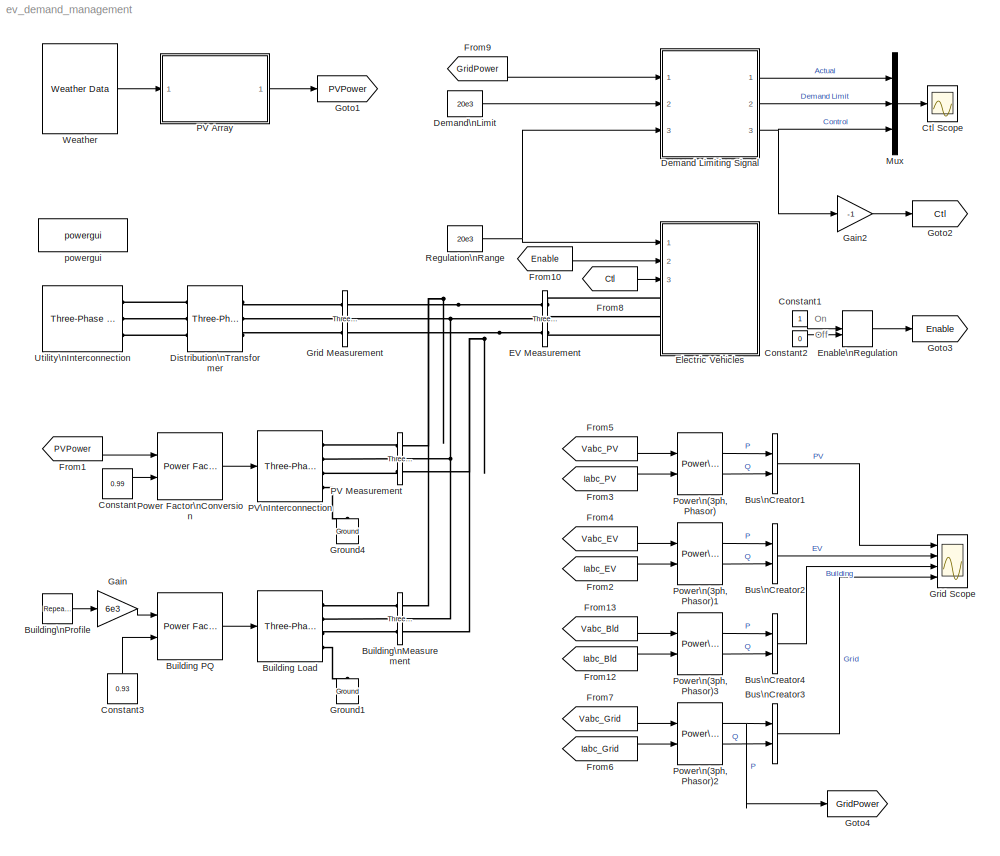
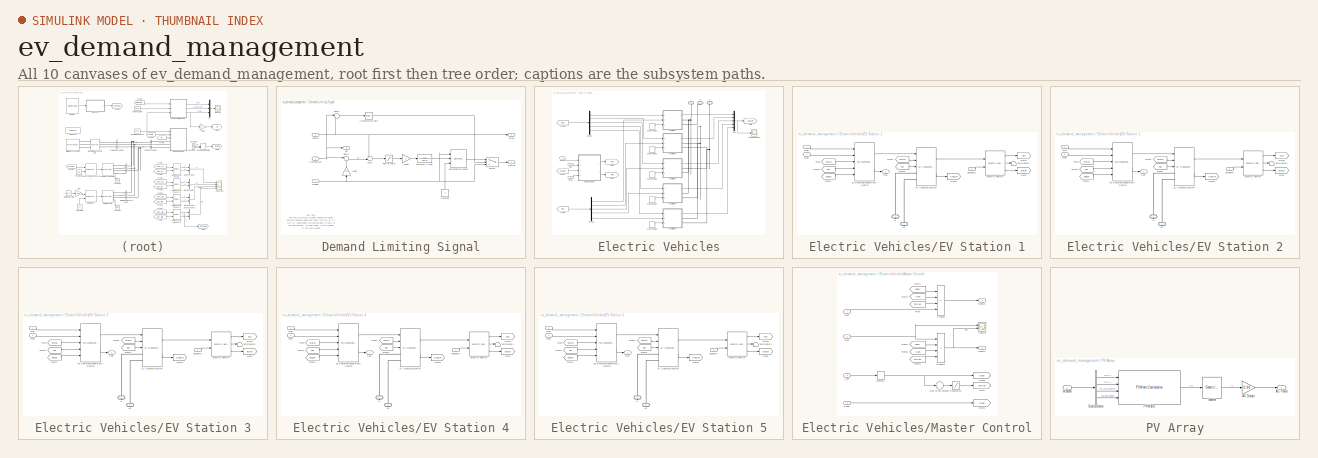
[diagram: thumbnail index - all 10 canvases of the model, root first then tree order]
MODEL ev_demand_management
KIND model
BLOCK [Reference] Building Load  REF=CampusEnergyModeling/Electrical/Three-Phase\nConstant Power\nSource or Load
  Conven = load
  PNom = 5e3
  Ports = [1, 0, 0, 0, 0, 0, 4]
  QNom = 2e3
  SID = 808
  SourceBlock = CampusEnergyModeling/Electrical/Three-Phase\nConstant Power\nSource or Load
  SourceType = Three-Phase Constant Power Source/Load
  VLow = 0.7
  VNom = 208
  fNom = 60
BLOCK [Reference] Building PQ  REF=CampusEnergyModeling/Electrical/Power Factor\nConversion
  Ports = [2, 1]
  SID = 809
  SourceBlock = CampusEnergyModeling/Electrical/Power Factor\nConversion
  SourceType = Power Factor Conversion
  pfType = Lagging
BLOCK [Reference] Building\nMeasurement  REF=powerlib/Measurements/Three-Phase\nV-I Measurement
  CurrentMeasurement = yes
  Ipu = off
  LabelI = Iabc_Bld
  LabelV = Vabc_Bld
  OutputType = Complex
  PSBequivalent = 0
  Pbase = 100e3
  PhasorSimulation = on
  Ports = [0, 0, 0, 0, 0, 3, 3]
  SID = 813
  SetLabelI = on
  SetLabelV = on
  SourceBlock = powerlib/Measurements/Three-Phase\nV-I Measurement
  SourceType = Three-Phase VI Measurement
  Vbase = 208e3
  VoltageMeasurement = phase-to-ground
  Vpu = off
  VpuLL = off
BLOCK [Reference] Building\nProfile  REF=simulink/Sources/Repeating\nSequence
  Ports = [0, 1]
  SID = 811
  SourceBlock = simulink/Sources/Repeating\nSequence
  SourceType = Repeating table
  rep_seq_t = [0 1 2 3 4 5 6 7 8 9 10 11 12 13 14 15 16 17 18 19 20 21 22 23 24]*3600
  rep_seq_y = [0.53 0.53 0.54 0.54 0.56 0.77 0.95 1.53 1.79 1.80 1.83 1.83 1.88 1.91 1.91 1.92 1.63 1.28 1.20 1.13 1.08 0.71 0.52 0.52 0.53]
BLOCK [BusCreator] Bus\nCreator1
  DisplayOption = bar
  Inputs = 2
  Ports = [2, 1]
  SID = 470
BLOCK [BusCreator] Bus\nCreator2
  DisplayOption = bar
  Inputs = 2
  Ports = [2, 1]
  SID = 477
BLOCK [BusCreator] Bus\nCreator3
  DisplayOption = bar
  Inputs = 2
  Ports = [2, 1]
  SID = 481
BLOCK [BusCreator] Bus\nCreator4
  DisplayOption = bar
  Inputs = 2
  Ports = [2, 1]
  SID = 814
BLOCK [Constant] Constant
  SID = 455
  Value = 0.99
BLOCK [Constant] Constant1
  SID = 167
BLOCK [Constant] Constant2
  SID = 170
  Value = 0
BLOCK [Constant] Constant3
  SID = 810
  Value = 0.93
BLOCK [Scope] Ctl Scope
  DataFormat = StructureWithTime
  Floating = off
  LimitDataPoints = off
  NumInputPorts = 1
  Ports = [1]
  SID = 1009
  SampleTime = 0
  ShowLegends = on
  TimeRange = 86400
  YMax = 50000
  YMin = -35000
  ZoomMode = xonly
BLOCK [SubSystem] Demand Limiting Signal
  FunctionWithSeparateData = off
  MaskHideContents = off
  MinAlgLoopOccurrences = off
  Opaque = off
  Ports = [3, 3]
  PropExecContextOutsideSubsystem = off
  RTWSystemCode = Auto
  RequestExecContextInheritance = off
  SID = 17
BLOCK [Outport] Demand Limiting Signal/Actual
  IconDisplay = Port number
  SID = 1021
BLOCK [Reference] Demand Limiting Signal/Compare\nTo Zero  REF=simulink/Logic and Bit\nOperations/Compare\nTo Zero
  OutDataTypeStr = boolean
  Ports = [1, 1]
  SID = 1028
  SourceBlock = simulink/Logic and Bit\nOperations/Compare\nTo Zero
  SourceType = Compare To Zero
  ZeroCross = on
  relop = >=
BLOCK [Constant] Demand Limiting Signal/Constant
  SID = 1031
  Value = 0
BLOCK [Outport] Demand Limiting Signal/Control
  IconDisplay = Port number
  Port = 3
  SID = 1000
BLOCK [Inport] Demand Limiting Signal/Demand Lim
  IconDisplay = Port number
  Port = 2
  SID = 981
BLOCK [Saturate] Demand Limiting Signal/Floor at Zero
  InputPortMap = u0
  LowerLimit = 0
  Ports = [1, 1]
  SID = 987
  UpperLimit = Inf
BLOCK [Gain] Demand Limiting Signal/Gain1
  Gain = 1/2
  OutDataTypeStr = Inherit: Inherit via internal rule
  ParamDataTypeStr = Inherit: Inherit via internal rule
  SID = 996
  SaturateOnIntegerOverflow = off
BLOCK [Gain] Demand Limiting Signal/Gain2
  Gain = 2
  OutDataTypeStr = Inherit: Inherit via internal rule
  ParamDataTypeStr = Inherit: Inherit via internal rule
  SID = 1019
  SaturateOnIntegerOverflow = off
BLOCK [TransferFcn] Demand Limiting Signal/LPF\nTau = 1 min
  Denominator = [60 1]
  SID = 1026
BLOCK [Outport] Demand Limiting Signal/Lim
  IconDisplay = Port number
  Port = 2
  SID = 1025
BLOCK [Inport] Demand Limiting Signal/Power
  IconDisplay = Port number
  SID = 18
BLOCK [Inport] Demand Limiting Signal/Range
  IconDisplay = Port number
  Port = 3
  SID = 985
BLOCK [Reference] Demand Limiting Signal/Saturation\nDynamic  REF=simulink/Discontinuities/Saturation\nDynamic
  DoSatur = off
  LockScale = off
  OutDataType = fixdt(1, 16)
  OutDataTypeStr = Inherit: Same as second input
  OutMax = []
  OutMin = []
  OutScaling = 2^-10
  OutputDataTypeScalingMode = Same as second input
  Ports = [3, 1]
  RndMeth = Floor
  SID = 1030
  SourceBlock = simulink/Discontinuities/Saturation\nDynamic
  SourceType = Saturation Dynamic
BLOCK [Sum] Demand Limiting Signal/Sum1
  IconShape = round
  InputSameDT = off
  Inputs = +-|
  OutDataTypeStr = Inherit: Inherit via internal rule
  Ports = [2, 1]
  SID = 992
  SaturateOnIntegerOverflow = off
BLOCK [Sum] Demand Limiting Signal/Sum2
  IconShape = round
  InputSameDT = off
  Inputs = |+-
  OutDataTypeStr = Inherit: Inherit via internal rule
  Ports = [2, 1]
  SID = 46
  SaturateOnIntegerOverflow = off
BLOCK [Sum] Demand Limiting Signal/Sum3
  IconShape = round
  InputSameDT = off
  Inputs = |+-
  OutDataTypeStr = Inherit: Inherit via internal rule
  Ports = [2, 1]
  SID = 1029
  SaturateOnIntegerOverflow = off
BLOCK [Switch] Demand Limiting Signal/Switch
  Criteria = u2 ~= 0
  InputSameDT = off
  SID = 1027
  SaturateOnIntegerOverflow = off
BLOCK [Constant] Demand\nLimit
  SID = 982
  Value = 20e3
BLOCK [Reference] Distribution\nTransformer  REF=powerlib/Elements/Three-Phase\nTransformer\n(Two Windings)
  BreakLoop = off
  DataFile = 'hysteresis'
  DataType = off
  Hysteresis = off
  InitialFluxes = [ 0.8 , -0.8 , 0.7 ]
  Lm = 200
  Measurements = None
  MoreParameters = off
  NominalPower = [10e3 , 60]
  Ports = [0, 0, 0, 0, 0, 3, 3]
  Rm = 500
  SID = 220
  Saturation = [ 0,0 ; 0.0024,1.2 ; 1.0,1.52 ]
  SetInitialFlux = off
  SetSaturation = off
  SourceBlock = powerlib/Elements/Three-Phase\nTransformer\n(Two Windings)
  SourceType = Three-Phase Transformer (Two Windings)
  TransfoNumber = 1
  UNITS = pu
  Winding1 = [13.2e3 , 0.02/2 , 0.05/(120*pi)/2]
  Winding1Connection = Delta (D1)
  Winding2 = [208, 0.02/2 , 0.05/(120*pi)/2]
  Winding2Connection = Yg
BLOCK [Reference] EV Measurement  REF=powerlib/Measurements/Three-Phase\nV-I Measurement
  CurrentMeasurement = yes
  Ipu = off
  LabelI = Iabc_EV
  LabelV = Vabc_EV
  OutputType = Complex
  PSBequivalent = 0
  Pbase = 100e3
  PhasorSimulation = on
  Ports = [0, 0, 0, 0, 0, 3, 3]
  SID = 476
  SetLabelI = on
  SetLabelV = on
  SourceBlock = powerlib/Measurements/Three-Phase\nV-I Measurement
  SourceType = Three-Phase VI Measurement
  Vbase = 208e3
  VoltageMeasurement = phase-to-ground
  Vpu = off
  VpuLL = off
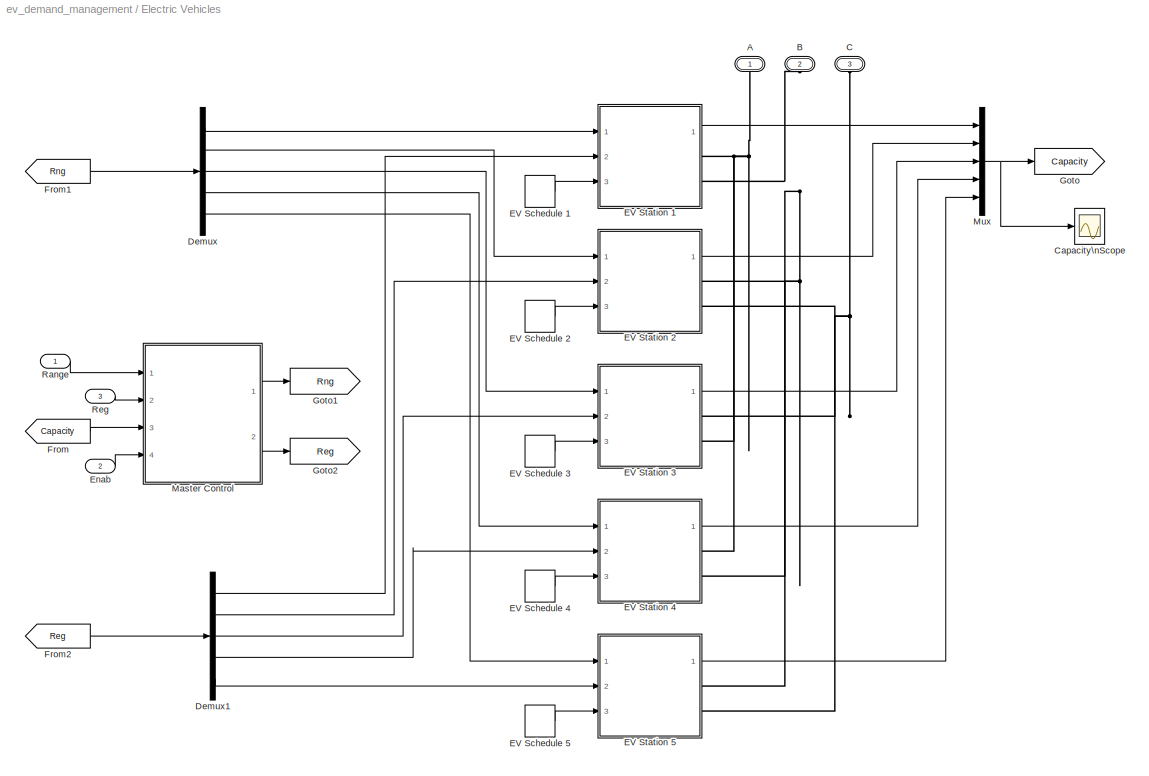
BLOCK [SubSystem] Electric Vehicles
  FunctionWithSeparateData = off
  MaskHideContents = off
  MinAlgLoopOccurrences = off
  Opaque = off
  Ports = [3, 0, 0, 0, 0, 3]
  PropExecContextOutsideSubsystem = off
  RTWSystemCode = Auto
  RequestExecContextInheritance = off
  SID = 65
BLOCK [PMIOPort] Electric Vehicles/A
  Port = 1
  SID = 113
  Side = Left
BLOCK [PMIOPort] Electric Vehicles/B
  Port = 2
  SID = 116
  Side = Left
BLOCK [PMIOPort] Electric Vehicles/C
  Port = 3
  SID = 117
  Side = Left
BLOCK [Scope] Electric Vehicles/Capacity\nScope
  DataFormat = StructureWithTime
  Floating = off
  LimitDataPoints = off
  NumInputPorts = 1
  Ports = [1]
  SID = 844
  SampleTime = 0
  SaveName = ScopeData3
  ShowLegends = on
  TimeRange = 90000
  YMax = 6000
  YMin = 0
  ZoomMode = xonly
BLOCK [Demux] Electric Vehicles/Demux
  DisplayOption = bar
  Outputs = 5
  Ports = [1, 5]
  SID = 784
BLOCK [Demux] Electric Vehicles/Demux1
  DisplayOption = bar
  Outputs = 5
  Ports = [1, 5]
  SID = 789
BLOCK [DiscretePulseGenerator] Electric Vehicles/EV Schedule 1
  Period = 86400
  PhaseDelay = (6)*3600
  Ports = [0, 1]
  PulseType = Time based
  PulseWidth = (9/24)*100
  SID = 91
BLOCK [DiscretePulseGenerator] Electric Vehicles/EV Schedule 2
  Period = 86400
  PhaseDelay = (6.5)*3600
  Ports = [0, 1]
  PulseType = Time based
  PulseWidth = (9/24)*100
  SID = 128
BLOCK [DiscretePulseGenerator] Electric Vehicles/EV Schedule 3
  Period = 86400
  PhaseDelay = (7)*3600
  Ports = [0, 1]
  PulseType = Time based
  PulseWidth = (9/24)*100
  SID = 147
BLOCK [DiscretePulseGenerator] Electric Vehicles/EV Schedule 4
  Period = 86400
  PhaseDelay = (7.5)*3600
  Ports = [0, 1]
  PulseType = Time based
  PulseWidth = (9/24)*100
  SID = 180
BLOCK [DiscretePulseGenerator] Electric Vehicles/EV Schedule 5
  Period = 86400
  PhaseDelay = (8)*3600
  Ports = [0, 1]
  PulseType = Time based
  PulseWidth = (9/24)*100
  SID = 199
BLOCK [SubSystem] Electric Vehicles/EV Station 1
  FunctionWithSeparateData = off
  MaskHideContents = off
  MinAlgLoopOccurrences = off
  Opaque = off
  Ports = [3, 1, 0, 0, 0, 0, 2]
  PropExecContextOutsideSubsystem = off
  RTWSystemCode = Auto
  RequestExecContextInheritance = off
  SID = 95
BLOCK [Reference] Electric Vehicles/EV Station 1/AC Charging Station  REF=CampusEnergyModeling/Electric Vehicles/AC Charging Station
  Ports = [3, 2, 0, 0, 0, 2]
  SID = 85
  SourceBlock = CampusEnergyModeling/Electric Vehicles/AC Charging Station
  SourceType = AC Charging Station
  eff = 0.99
  freq = 60
  pf = 0.99
  prated = 6600
  pstandby = 50
  vrated = 240
BLOCK [Outport] Electric Vehicles/EV Station 1/Cap
  IconDisplay = Port number
  SID = 637
BLOCK [Reference] Electric Vehicles/EV Station 1/EV Charging\nSupervisory Control  REF=CampusEnergyModeling/Electric Vehicles/EV Charging\nSupervisory Control
  Ports = [5, 2]
  SID = 94
  SourceBlock = CampusEnergyModeling/Electric Vehicles/EV Charging\nSupervisory Control
  SourceType = EV Charging Supervisory Control
  ctype = AC
  ldsettings = on
  ramp = 100
  regtype = One-sided
  sweepint = 1650+300*rand(1)
  sweepramp = 10
  thr = 1.0
BLOCK [Reference] Electric Vehicles/EV Station 1/Electric Vehicle  REF=CampusEnergyModeling/Electric Vehicles/Electric Vehicle
  Ports = [2, 3]
  SID = 90
  SourceBlock = CampusEnergyModeling/Electric Vehicles/Electric Vehicle
  SourceType = Electric Vehicle
  battEff = 0.98
  capacity = 24000
  chargerEff = 0.96
  ctype = AC
  initSOC = 0.3
  profile = off
  profileRate = [0.10 0.20 1.00 1.00 0.01 0.00]
  profileSOC = [0.00 0.10 0.20 0.80 0.99 1.00]
  rating = 6240
BLOCK [From] Electric Vehicles/EV Station 1/From
  GotoTag = Status
  SID = 102
BLOCK [From] Electric Vehicles/EV Station 1/From1
  GotoTag = Status
  SID = 104
BLOCK [From] Electric Vehicles/EV Station 1/From2
  GotoTag = Pwr
  SID = 107
BLOCK [From] Electric Vehicles/EV Station 1/From3
  GotoTag = Pwr
  SID = 111
BLOCK [From] Electric Vehicles/EV Station 1/From4
  GotoTag = ChgLim
  SID = 884
BLOCK [Goto] Electric Vehicles/EV Station 1/Goto
  GotoTag = Status
  SID = 103
BLOCK [Goto] Electric Vehicles/EV Station 1/Goto1
  GotoTag = Pwr
  SID = 105
BLOCK [Goto] Electric Vehicles/EV Station 1/Goto2
  GotoTag = ChgLim
  SID = 883
BLOCK [PMIOPort] Electric Vehicles/EV Station 1/L1
  Port = 1
  SID = 88
  Side = Right
BLOCK [PMIOPort] Electric Vehicles/EV Station 1/L2
  Port = 2
  SID = 87
  Side = Right
BLOCK [Inport] Electric Vehicles/EV Station 1/Reg
  IconDisplay = Port number
  Port = 2
  SID = 98
BLOCK [Inport] Electric Vehicles/EV Station 1/Rng
  IconDisplay = Port number
  SID = 96
BLOCK [Inport] Electric Vehicles/EV Station 1/Schedule
  IconDisplay = Port number
  Port = 3
  SID = 101
BLOCK [Terminator] Electric Vehicles/EV Station 1/Terminator1
  SID = 109
BLOCK [SubSystem] Electric Vehicles/EV Station 2
  FunctionWithSeparateData = off
  MaskHideContents = off
  MinAlgLoopOccurrences = off
  Opaque = off
  Ports = [3, 1, 0, 0, 0, 0, 2]
  PropExecContextOutsideSubsystem = off
  RTWSystemCode = Auto
  RequestExecContextInheritance = off
  SID = 904
BLOCK [Reference] Electric Vehicles/EV Station 2/AC Charging Station  REF=CampusEnergyModeling/Electric Vehicles/AC Charging Station
  Ports = [3, 2, 0, 0, 0, 2]
  SID = 908
  SourceBlock = CampusEnergyModeling/Electric Vehicles/AC Charging Station
  SourceType = AC Charging Station
  eff = 0.99
  freq = 60
  pf = 0.99
  prated = 6600
  pstandby = 50
  vrated = 240
BLOCK [Outport] Electric Vehicles/EV Station 2/Cap
  IconDisplay = Port number
  SID = 922
BLOCK [Reference] Electric Vehicles/EV Station 2/EV Charging\nSupervisory Control  REF=CampusEnergyModeling/Electric Vehicles/EV Charging\nSupervisory Control
  Ports = [5, 2]
  SID = 909
  SourceBlock = CampusEnergyModeling/Electric Vehicles/EV Charging\nSupervisory Control
  SourceType = EV Charging Supervisory Control
  ctype = AC
  ldsettings = on
  ramp = 100
  regtype = One-sided
  sweepint = 1650+300*rand(1)
  sweepramp = 10
  thr = 1.0
BLOCK [Reference] Electric Vehicles/EV Station 2/Electric Vehicle  REF=CampusEnergyModeling/Electric Vehicles/Electric Vehicle
  Ports = [2, 3]
  SID = 910
  SourceBlock = CampusEnergyModeling/Electric Vehicles/Electric Vehicle
  SourceType = Electric Vehicle
  battEff = 0.98
  capacity = 24000
  chargerEff = 0.96
  ctype = AC
  initSOC = 0.3
  profile = off
  profileRate = [0.10 0.20 1.00 1.00 0.01 0.00]
  profileSOC = [0.00 0.10 0.20 0.80 0.99 1.00]
  rating = 6240
BLOCK [From] Electric Vehicles/EV Station 2/From
  GotoTag = Status
  SID = 911
BLOCK [From] Electric Vehicles/EV Station 2/From1
  GotoTag = Status
  SID = 912
BLOCK [From] Electric Vehicles/EV Station 2/From2
  GotoTag = Pwr
  SID = 913
BLOCK [From] Electric Vehicles/EV Station 2/From3
  GotoTag = Pwr
  SID = 914
BLOCK [From] Electric Vehicles/EV Station 2/From4
  GotoTag = ChgLim
  SID = 915
BLOCK [Goto] Electric Vehicles/EV Station 2/Goto
  GotoTag = Status
  SID = 916
BLOCK [Goto] Electric Vehicles/EV Station 2/Goto1
  GotoTag = Pwr
  SID = 917
BLOCK [Goto] Electric Vehicles/EV Station 2/Goto2
  GotoTag = ChgLim
  SID = 918
BLOCK [PMIOPort] Electric Vehicles/EV Station 2/L1
  Port = 1
  SID = 920
  Side = Right
BLOCK [PMIOPort] Electric Vehicles/EV Station 2/L2
  Port = 2
  SID = 921
  Side = Right
BLOCK [Inport] Electric Vehicles/EV Station 2/Reg
  IconDisplay = Port number
  Port = 2
  SID = 906
BLOCK [Inport] Electric Vehicles/EV Station 2/Rng
  IconDisplay = Port number
  SID = 905
BLOCK [Inport] Electric Vehicles/EV Station 2/Schedule
  IconDisplay = Port number
  Port = 3
  SID = 907
BLOCK [Terminator] Electric Vehicles/EV Station 2/Terminator1
  SID = 919
BLOCK [SubSystem] Electric Vehicles/EV Station 3
  FunctionWithSeparateData = off
  MaskHideContents = off
  MinAlgLoopOccurrences = off
  Opaque = off
  Ports = [3, 1, 0, 0, 0, 0, 2]
  PropExecContextOutsideSubsystem = off
  RTWSystemCode = Auto
  RequestExecContextInheritance = off
  SID = 923
BLOCK [Reference] Electric Vehicles/EV Station 3/AC Charging Station  REF=CampusEnergyModeling/Electric Vehicles/AC Charging Station
  Ports = [3, 2, 0, 0, 0, 2]
  SID = 927
  SourceBlock = CampusEnergyModeling/Electric Vehicles/AC Charging Station
  SourceType = AC Charging Station
  eff = 0.99
  freq = 60
  pf = 0.99
  prated = 6600
  pstandby = 50
  vrated = 240
BLOCK [Outport] Electric Vehicles/EV Station 3/Cap
  IconDisplay = Port number
  SID = 941
BLOCK [Reference] Electric Vehicles/EV Station 3/EV Charging\nSupervisory Control  REF=CampusEnergyModeling/Electric Vehicles/EV Charging\nSupervisory Control
  Ports = [5, 2]
  SID = 928
  SourceBlock = CampusEnergyModeling/Electric Vehicles/EV Charging\nSupervisory Control
  SourceType = EV Charging Supervisory Control
  ctype = AC
  ldsettings = on
  ramp = 100
  regtype = One-sided
  sweepint = 1650+300*rand(1)
  sweepramp = 10
  thr = 1.0
BLOCK [Reference] Electric Vehicles/EV Station 3/Electric Vehicle  REF=CampusEnergyModeling/Electric Vehicles/Electric Vehicle
  Ports = [2, 3]
  SID = 929
  SourceBlock = CampusEnergyModeling/Electric Vehicles/Electric Vehicle
  SourceType = Electric Vehicle
  battEff = 0.98
  capacity = 24000
  chargerEff = 0.96
  ctype = AC
  initSOC = 0.3
  profile = off
  profileRate = [0.10 0.20 1.00 1.00 0.01 0.00]
  profileSOC = [0.00 0.10 0.20 0.80 0.99 1.00]
  rating = 6240
BLOCK [From] Electric Vehicles/EV Station 3/From
  GotoTag = Status
  SID = 930
BLOCK [From] Electric Vehicles/EV Station 3/From1
  GotoTag = Status
  SID = 931
BLOCK [From] Electric Vehicles/EV Station 3/From2
  GotoTag = Pwr
  SID = 932
BLOCK [From] Electric Vehicles/EV Station 3/From3
  GotoTag = Pwr
  SID = 933
BLOCK [From] Electric Vehicles/EV Station 3/From4
  GotoTag = ChgLim
  SID = 934
BLOCK [Goto] Electric Vehicles/EV Station 3/Goto
  GotoTag = Status
  SID = 935
BLOCK [Goto] Electric Vehicles/EV Station 3/Goto1
  GotoTag = Pwr
  SID = 936
BLOCK [Goto] Electric Vehicles/EV Station 3/Goto2
  GotoTag = ChgLim
  SID = 937
BLOCK [PMIOPort] Electric Vehicles/EV Station 3/L1
  Port = 1
  SID = 939
  Side = Right
BLOCK [PMIOPort] Electric Vehicles/EV Station 3/L2
  Port = 2
  SID = 940
  Side = Right
BLOCK [Inport] Electric Vehicles/EV Station 3/Reg
  IconDisplay = Port number
  Port = 2
  SID = 925
BLOCK [Inport] Electric Vehicles/EV Station 3/Rng
  IconDisplay = Port number
  SID = 924
BLOCK [Inport] Electric Vehicles/EV Station 3/Schedule
  IconDisplay = Port number
  Port = 3
  SID = 926
BLOCK [Terminator] Electric Vehicles/EV Station 3/Terminator1
  SID = 938
BLOCK [SubSystem] Electric Vehicles/EV Station 4
  FunctionWithSeparateData = off
  MaskHideContents = off
  MinAlgLoopOccurrences = off
  Opaque = off
  Ports = [3, 1, 0, 0, 0, 0, 2]
  PropExecContextOutsideSubsystem = off
  RTWSystemCode = Auto
  RequestExecContextInheritance = off
  SID = 942
BLOCK [Reference] Electric Vehicles/EV Station 4/AC Charging Station  REF=CampusEnergyModeling/Electric Vehicles/AC Charging Station
  Ports = [3, 2, 0, 0, 0, 2]
  SID = 946
  SourceBlock = CampusEnergyModeling/Electric Vehicles/AC Charging Station
  SourceType = AC Charging Station
  eff = 0.99
  freq = 60
  pf = 0.99
  prated = 6600
  pstandby = 50
  vrated = 240
BLOCK [Outport] Electric Vehicles/EV Station 4/Cap
  IconDisplay = Port number
  SID = 960
BLOCK [Reference] Electric Vehicles/EV Station 4/EV Charging\nSupervisory Control  REF=CampusEnergyModeling/Electric Vehicles/EV Charging\nSupervisory Control
  Ports = [5, 2]
  SID = 947
  SourceBlock = CampusEnergyModeling/Electric Vehicles/EV Charging\nSupervisory Control
  SourceType = EV Charging Supervisory Control
  ctype = AC
  ldsettings = on
  ramp = 100
  regtype = One-sided
  sweepint = 1650+300*rand(1)
  sweepramp = 10
  thr = 1.0
BLOCK [Reference] Electric Vehicles/EV Station 4/Electric Vehicle  REF=CampusEnergyModeling/Electric Vehicles/Electric Vehicle
  Ports = [2, 3]
  SID = 948
  SourceBlock = CampusEnergyModeling/Electric Vehicles/Electric Vehicle
  SourceType = Electric Vehicle
  battEff = 0.98
  capacity = 24000
  chargerEff = 0.96
  ctype = AC
  initSOC = 0.3
  profile = off
  profileRate = [0.10 0.20 1.00 1.00 0.01 0.00]
  profileSOC = [0.00 0.10 0.20 0.80 0.99 1.00]
  rating = 6240
BLOCK [From] Electric Vehicles/EV Station 4/From
  GotoTag = Status
  SID = 949
BLOCK [From] Electric Vehicles/EV Station 4/From1
  GotoTag = Status
  SID = 950
BLOCK [From] Electric Vehicles/EV Station 4/From2
  GotoTag = Pwr
  SID = 951
BLOCK [From] Electric Vehicles/EV Station 4/From3
  GotoTag = Pwr
  SID = 952
BLOCK [From] Electric Vehicles/EV Station 4/From4
  GotoTag = ChgLim
  SID = 953
BLOCK [Goto] Electric Vehicles/EV Station 4/Goto
  GotoTag = Status
  SID = 954
BLOCK [Goto] Electric Vehicles/EV Station 4/Goto1
  GotoTag = Pwr
  SID = 955
BLOCK [Goto] Electric Vehicles/EV Station 4/Goto2
  GotoTag = ChgLim
  SID = 956
BLOCK [PMIOPort] Electric Vehicles/EV Station 4/L1
  Port = 1
  SID = 958
  Side = Right
BLOCK [PMIOPort] Electric Vehicles/EV Station 4/L2
  Port = 2
  SID = 959
  Side = Right
BLOCK [Inport] Electric Vehicles/EV Station 4/Reg
  IconDisplay = Port number
  Port = 2
  SID = 944
BLOCK [Inport] Electric Vehicles/EV Station 4/Rng
  IconDisplay = Port number
  SID = 943
BLOCK [Inport] Electric Vehicles/EV Station 4/Schedule
  IconDisplay = Port number
  Port = 3
  SID = 945
BLOCK [Terminator] Electric Vehicles/EV Station 4/Terminator1
  SID = 957
BLOCK [SubSystem] Electric Vehicles/EV Station 5
  FunctionWithSeparateData = off
  MaskHideContents = off
  MinAlgLoopOccurrences = off
  Opaque = off
  Ports = [3, 1, 0, 0, 0, 0, 2]
  PropExecContextOutsideSubsystem = off
  RTWSystemCode = Auto
  RequestExecContextInheritance = off
  SID = 961
BLOCK [Reference] Electric Vehicles/EV Station 5/AC Charging Station  REF=CampusEnergyModeling/Electric Vehicles/AC Charging Station
  Ports = [3, 2, 0, 0, 0, 2]
  SID = 965
  SourceBlock = CampusEnergyModeling/Electric Vehicles/AC Charging Station
  SourceType = AC Charging Station
  eff = 0.99
  freq = 60
  pf = 0.99
  prated = 6600
  pstandby = 50
  vrated = 240
BLOCK [Outport] Electric Vehicles/EV Station 5/Cap
  IconDisplay = Port number
  SID = 979
BLOCK [Reference] Electric Vehicles/EV Station 5/EV Charging\nSupervisory Control  REF=CampusEnergyModeling/Electric Vehicles/EV Charging\nSupervisory Control
  Ports = [5, 2]
  SID = 966
  SourceBlock = CampusEnergyModeling/Electric Vehicles/EV Charging\nSupervisory Control
  SourceType = EV Charging Supervisory Control
  ctype = AC
  ldsettings = on
  ramp = 100
  regtype = One-sided
  sweepint = 1650+300*rand(1)
  sweepramp = 10
  thr = 1.0
BLOCK [Reference] Electric Vehicles/EV Station 5/Electric Vehicle  REF=CampusEnergyModeling/Electric Vehicles/Electric Vehicle
  Ports = [2, 3]
  SID = 967
  SourceBlock = CampusEnergyModeling/Electric Vehicles/Electric Vehicle
  SourceType = Electric Vehicle
  battEff = 0.98
  capacity = 24000
  chargerEff = 0.96
  ctype = AC
  initSOC = 0.3
  profile = off
  profileRate = [0.10 0.20 1.00 1.00 0.01 0.00]
  profileSOC = [0.00 0.10 0.20 0.80 0.99 1.00]
  rating = 6240
BLOCK [From] Electric Vehicles/EV Station 5/From
  GotoTag = Status
  SID = 968
BLOCK [From] Electric Vehicles/EV Station 5/From1
  GotoTag = Status
  SID = 969
BLOCK [From] Electric Vehicles/EV Station 5/From2
  GotoTag = Pwr
  SID = 970
BLOCK [From] Electric Vehicles/EV Station 5/From3
  GotoTag = Pwr
  SID = 971
BLOCK [From] Electric Vehicles/EV Station 5/From4
  GotoTag = ChgLim
  SID = 972
BLOCK [Goto] Electric Vehicles/EV Station 5/Goto
  GotoTag = Status
  SID = 973
BLOCK [Goto] Electric Vehicles/EV Station 5/Goto1
  GotoTag = Pwr
  SID = 974
BLOCK [Goto] Electric Vehicles/EV Station 5/Goto2
  GotoTag = ChgLim
  SID = 975
BLOCK [PMIOPort] Electric Vehicles/EV Station 5/L1
  Port = 1
  SID = 977
  Side = Right
BLOCK [PMIOPort] Electric Vehicles/EV Station 5/L2
  Port = 2
  SID = 978
  Side = Right
BLOCK [Inport] Electric Vehicles/EV Station 5/Reg
  IconDisplay = Port number
  Port = 2
  SID = 963
BLOCK [Inport] Electric Vehicles/EV Station 5/Rng
  IconDisplay = Port number
  SID = 962
BLOCK [Inport] Electric Vehicles/EV Station 5/Schedule
  IconDisplay = Port number
  Port = 3
  SID = 964
BLOCK [Terminator] Electric Vehicles/EV Station 5/Terminator1
  SID = 976
BLOCK [Inport] Electric Vehicles/Enab
  IconDisplay = Port number
  Port = 2
  SID = 486
BLOCK [From] Electric Vehicles/From
  GotoTag = Capacity
  SID = 762
BLOCK [From] Electric Vehicles/From1
  GotoTag = Rng
  SID = 787
BLOCK [From] Electric Vehicles/From2
  GotoTag = Reg
  SID = 788
BLOCK [Goto] Electric Vehicles/Goto
  GotoTag = Capacity
  SID = 761
BLOCK [Goto] Electric Vehicles/Goto1
  GotoTag = Rng
  SID = 785
BLOCK [Goto] Electric Vehicles/Goto2
  GotoTag = Reg
  SID = 786
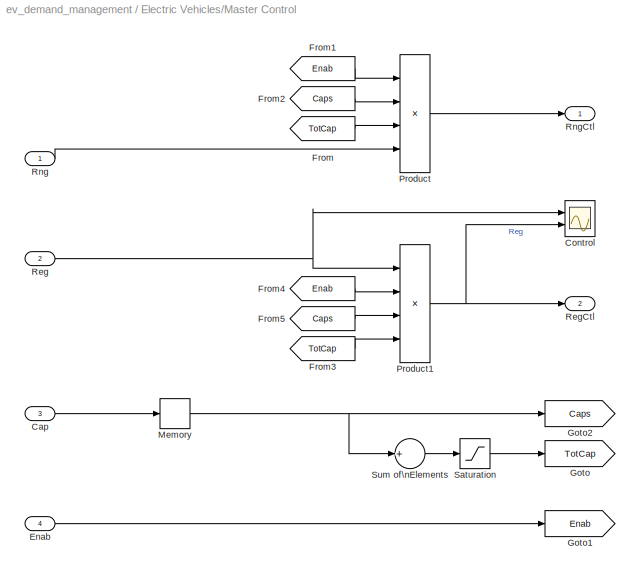
BLOCK [SubSystem] Electric Vehicles/Master Control
  FunctionWithSeparateData = off
  MaskHideContents = off
  MinAlgLoopOccurrences = off
  Opaque = off
  Ports = [4, 2]
  PropExecContextOutsideSubsystem = off
  RTWSystemCode = Auto
  RequestExecContextInheritance = off
  SID = 681
BLOCK [Inport] Electric Vehicles/Master Control/Cap
  IconDisplay = Port number
  Port = 3
  SID = 686
BLOCK [Scope] Electric Vehicles/Master Control/Control
  DataFormat = StructureWithTime
  Floating = off
  LimitDataPoints = off
  NumInputPorts = 2
  Ports = [2]
  SID = 799
  SampleTime = 0
  SaveName = ScopeData2
  ShowLegends = on
  TimeRange = 100000
  YMax = -0~-0
  YMin = -20000~-2500
  ZoomMode = xonly
BLOCK [Inport] Electric Vehicles/Master Control/Enab
  IconDisplay = Port number
  Port = 4
  SID = 685
BLOCK [From] Electric Vehicles/Master Control/From
  GotoTag = TotCap
  SID = 766
BLOCK [From] Electric Vehicles/Master Control/From1
  GotoTag = Enab
  SID = 769
BLOCK [From] Electric Vehicles/Master Control/From2
  GotoTag = Caps
  SID = 772
BLOCK [From] Electric Vehicles/Master Control/From3
  GotoTag = TotCap
  SID = 775
BLOCK [From] Electric Vehicles/Master Control/From4
  GotoTag = Enab
  SID = 776
BLOCK [From] Electric Vehicles/Master Control/From5
  GotoTag = Caps
  SID = 777
BLOCK [Goto] Electric Vehicles/Master Control/Goto
  GotoTag = TotCap
  SID = 767
BLOCK [Goto] Electric Vehicles/Master Control/Goto1
  GotoTag = Enab
  SID = 768
BLOCK [Goto] Electric Vehicles/Master Control/Goto2
  GotoTag = Caps
  SID = 771
BLOCK [Memory] Electric Vehicles/Master Control/Memory
  SID = 794
BLOCK [Product] Electric Vehicles/Master Control/Product
  InputSameDT = off
  Inputs = **/*
  OutDataTypeStr = Inherit: Inherit via internal rule
  Ports = [4, 1]
  RndMeth = Floor
  SID = 770
  SaturateOnIntegerOverflow = off
BLOCK [Product] Electric Vehicles/Master Control/Product1
  InputSameDT = off
  Inputs = ***/
  OutDataTypeStr = Inherit: Inherit via internal rule
  Ports = [4, 1]
  RndMeth = Floor
  SID = 778
  SaturateOnIntegerOverflow = off
BLOCK [Inport] Electric Vehicles/Master Control/Reg
  IconDisplay = Port number
  Port = 2
  SID = 682
BLOCK [Outport] Electric Vehicles/Master Control/RegCtl
  IconDisplay = Port number
  Port = 2
  SID = 763
BLOCK [Inport] Electric Vehicles/Master Control/Rng
  IconDisplay = Port number
  SID = 684
BLOCK [Outport] Electric Vehicles/Master Control/RngCtl
  IconDisplay = Port number
  SID = 683
BLOCK [Saturate] Electric Vehicles/Master Control/Saturation
  InputPortMap = u0
  LowerLimit = 1
  Ports = [1, 1]
  SID = 783
  UpperLimit = inf
BLOCK [Sum] Electric Vehicles/Master Control/Sum of\nElements
  InputSameDT = off
  Inputs = +
  OutDataTypeStr = Inherit: Inherit via internal rule
  Ports = [1, 1]
  SID = 680
  SaturateOnIntegerOverflow = off
BLOCK [Mux] Electric Vehicles/Mux
  DisplayOption = bar
  Inputs = 5
  Ports = [5, 1]
  SID = 688
BLOCK [Inport] Electric Vehicles/Range
  IconDisplay = Port number
  SID = 983
BLOCK [Inport] Electric Vehicles/Reg
  IconDisplay = Port number
  Port = 3
  SID = 66
BLOCK [ManualSwitch] Enable\nRegulation
  SID = 166
BLOCK [From] From1
  GotoTag = PVPower
  SID = 675
BLOCK [From] From10
  GotoTag = Enable
  SID = 677
BLOCK [From] From12
  GotoTag = Iabc_Bld
  SID = 815
  TagVisibility = global
BLOCK [From] From13
  GotoTag = Vabc_Bld
  SID = 816
  TagVisibility = global
BLOCK [From] From2
  GotoTag = Iabc_EV
  SID = 478
  TagVisibility = global
BLOCK [From] From3
  GotoTag = Iabc_PV
  SID = 465
  TagVisibility = global
BLOCK [From] From4
  GotoTag = Vabc_EV
  SID = 479
  TagVisibility = global
BLOCK [From] From5
  GotoTag = Vabc_PV
  SID = 466
  TagVisibility = global
BLOCK [From] From6
  GotoTag = Iabc_Grid
  SID = 482
  TagVisibility = global
BLOCK [From] From7
  GotoTag = Vabc_Grid
  SID = 483
  TagVisibility = global
BLOCK [From] From8
  GotoTag = Ctl
  SID = 177
BLOCK [From] From9
  GotoTag = GridPower
  SID = 830
BLOCK [Gain] Gain
  Gain = 6e3
  OutDataTypeStr = Inherit: Inherit via internal rule
  ParamDataTypeStr = Inherit: Inherit via internal rule
  SID = 818
  SaturateOnIntegerOverflow = off
BLOCK [Gain] Gain2
  Gain = -1
  OutDataTypeStr = Inherit: Inherit via internal rule
  ParamDataTypeStr = Inherit: Inherit via internal rule
  SID = 1023
  SaturateOnIntegerOverflow = off
BLOCK [Goto] Goto1
  GotoTag = PVPower
  SID = 462
BLOCK [Goto] Goto2
  GotoTag = Ctl
  SID = 1006
BLOCK [Goto] Goto3
  GotoTag = Enable
  SID = 676
BLOCK [Goto] Goto4
  GotoTag = GridPower
  SID = 831
BLOCK [Reference] Grid Measurement  REF=powerlib/Measurements/Three-Phase\nV-I Measurement
  CurrentMeasurement = yes
  Ipu = off
  LabelI = Iabc_Grid
  LabelV = Vabc_Grid
  OutputType = Complex
  PSBequivalent = 0
  Pbase = 100e3
  PhasorSimulation = on
  Ports = [0, 0, 0, 0, 0, 3, 3]
  SID = 472
  SetLabelI = on
  SetLabelV = on
  SourceBlock = powerlib/Measurements/Three-Phase\nV-I Measurement
  SourceType = Three-Phase VI Measurement
  Vbase = 208e3
  VoltageMeasurement = phase-to-ground
  Vpu = off
  VpuLL = off
BLOCK [Scope] Grid Scope
  DataFormat = StructureWithTime
  Floating = off
  LimitDataPoints = off
  NumInputPorts = 4
  Ports = [4]
  SID = 226
  SampleTime = 0
  SaveName = ScopeData1
  ShowLegends = on
  TimeRange = 86400
  YMax = 20000~27500~12000~35000
  YMin = -2500~-2500~1000~-7500
  ZoomMode = xonly
BLOCK [Reference] Ground1  REF=powerlib/Elements/Ground
  LConnTagsString = a
  Ports = [0, 0, 0, 0, 0, 1]
  SID = 812
  SourceBlock = powerlib/Elements/Ground
  SourceType = Ground
BLOCK [Reference] Ground4  REF=powerlib/Elements/Ground
  LConnTagsString = a
  Ports = [0, 0, 0, 0, 0, 1]
  SID = 457
  SourceBlock = powerlib/Elements/Ground
  SourceType = Ground
BLOCK [Mux] Mux
  DisplayOption = bar
  Inputs = 3
  Ports = [3, 1]
  SID = 1022
BLOCK [SubSystem] PV Array
  FunctionWithSeparateData = off
  MaskHideContents = off
  MinAlgLoopOccurrences = off
  Opaque = off
  Ports = [1, 1]
  PropExecContextOutsideSubsystem = off
  RTWSystemCode = Auto
  RequestExecContextInheritance = off
  SID = 667
BLOCK [Gain] PV Array/AC Derate
  Gain = 0.99
  OutDataTypeStr = Inherit: Inherit via internal rule
  ParamDataTypeStr = Inherit: Inherit via internal rule
  SID = 668
  SaturateOnIntegerOverflow = off
BLOCK [Outport] PV Array/AC Power
  IconDisplay = Port number
  SID = 673
BLOCK [BusSelector] PV Array/Bus\nSelector
  OutputSignals = DNI,DHI,DryBulbTemp,WindSpeed
  Ports = [1, 4]
  SID = 669
BLOCK [Reference] PV Array/Inverter  REF=CampusEnergyModeling/PV/Generic Inverter
  Ports = [1, 1]
  SID = 670
  SourceBlock = CampusEnergyModeling/PV/Generic Inverter
  SourceType = Generic Inverter
  alpha = 100.0
  beta = 0.04
  fixed_eff = 0.96
  gamma = 4.0e-07
  lookup_eff = [0.10, 0.80, 0.87, 0.93, 0.90, 0.88]
  lookup_in = [0, 10, 25, 50, 75, 100]
  lookup_out = [0, 9, 24, 49, 73, 97]
  lookup_pair = Input Power + Output Power
  max_power = 20.0e3
  model_type = Fixed Efficiency
  standby = 10.0
BLOCK [Reference] PV Array/PVWatts  REF=CampusEnergyModeling/PV/PVWatts Cosimulation
  Ports = [4, 1]
  SID = 671
  SourceBlock = CampusEnergyModeling/PV/PVWatts Cosimulation
  SourceType = PVWatts Cosimulation
  UserData = DataTag0
  UserDataPersistent = on
  alignment = Middle
  azimuth = 180
  derate = 0.908
  gamma = -0.5
  i_ref = 1000
  init_poa = 0
  init_tcell = 16.8
  lat = 39.7
  lon = -105.2
  output_celltemp = off
  output_dc = on
  output_poa = off
  poa_cutin = 0
  rotlim = 45
  start_time = 2012-05-17 00:00:00
  system_size = 20.0e3
  t_noct = 45
  t_ref = 25
  tilt = 10
  time_step = 15
  track_mode = Fixed
  tz = -7
  use_cell_data = off
  use_lat_tilt = off
BLOCK [Inport] PV Array/Weather
  IconDisplay = Port number
  SID = 674
BLOCK [Reference] PV Measurement  REF=powerlib/Measurements/Three-Phase\nV-I Measurement
  CurrentMeasurement = yes
  Ipu = off
  LabelI = Iabc_PV
  LabelV = Vabc_PV
  OutputType = Complex
  PSBequivalent = 0
  Pbase = 100e3
  PhasorSimulation = on
  Ports = [0, 0, 0, 0, 0, 3, 3]
  SID = 559
  SetLabelI = on
  SetLabelV = on
  SourceBlock = powerlib/Measurements/Three-Phase\nV-I Measurement
  SourceType = Three-Phase VI Measurement
  Vbase = 208e3
  VoltageMeasurement = phase-to-ground
  Vpu = off
  VpuLL = off
BLOCK [Reference] PV\nInterconnection  REF=CampusEnergyModeling/Electrical/Three-Phase\nConstant Power\nSource or Load
  Conven = source
  PNom = 20e3
  Ports = [1, 0, 0, 0, 0, 0, 4]
  QNom = 0
  SID = 458
  SourceBlock = CampusEnergyModeling/Electrical/Three-Phase\nConstant Power\nSource or Load
  SourceType = Three-Phase Constant Power Source/Load
  VLow = 0.7
  VNom = 208
  fNom = 60
BLOCK [Reference] Power Factor\nConversion  REF=CampusEnergyModeling/Electrical/Power Factor\nConversion
  Ports = [2, 1]
  SID = 459
  SourceBlock = CampusEnergyModeling/Electrical/Power Factor\nConversion
  SourceType = Power Factor Conversion
  pfType = Lagging
BLOCK [Reference] Power\n(3ph, Phasor)  REF=powerlib_meascontrol/Measurements/Power\n(3ph, Phasor)
  Ports = [2, 2]
  SID = 467
  SourceBlock = powerlib_meascontrol/Measurements/Power\n(3ph, Phasor)
  SourceType = Power (3ph, Phasor)
BLOCK [Reference] Power\n(3ph, Phasor)1  REF=powerlib_meascontrol/Measurements/Power\n(3ph, Phasor)
  Ports = [2, 2]
  SID = 480
  SourceBlock = powerlib_meascontrol/Measurements/Power\n(3ph, Phasor)
  SourceType = Power (3ph, Phasor)
BLOCK [Reference] Power\n(3ph, Phasor)2  REF=powerlib_meascontrol/Measurements/Power\n(3ph, Phasor)
  Ports = [2, 2]
  SID = 484
  SourceBlock = powerlib_meascontrol/Measurements/Power\n(3ph, Phasor)
  SourceType = Power (3ph, Phasor)
BLOCK [Reference] Power\n(3ph, Phasor)3  REF=powerlib_meascontrol/Measurements/Power\n(3ph, Phasor)
  Ports = [2, 2]
  SID = 817
  SourceBlock = powerlib_meascontrol/Measurements/Power\n(3ph, Phasor)
  SourceType = Power (3ph, Phasor)
BLOCK [Constant] Regulation\nRange
  SID = 984
  Value = 20e3
BLOCK [Reference] Utility\nInterconnection  REF=powerlib/Electrical\nSources/Three-Phase Source
  BaseVoltage = 13.2e3
  BusType = swing
  Frequency = 60
  Inductance = 16.58e-3
  InternalConnection = Yg
  PhaseAngle = 0
  Ports = [0, 0, 0, 0, 0, 0, 3]
  Pref = 0
  Qmax = inf
  Qmin = -inf
  Qref = 0
  Resistance = 0.8929
  SID = 227
  ShortCircuitLevel = 1e6
  SourceBlock = powerlib/Electrical\nSources/Three-Phase Source
  SourceType = Three-Phase Source
  SpecifyImpedance = on
  Voltage = 13.2e3
  XRratio = 8
BLOCK [Reference] Weather  REF=CampusEnergyModeling/Weather/Weather Data
  Ports = [0, 1]
  SID = 672
  SourceBlock = CampusEnergyModeling/Weather/Weather Data
  SourceType = Weather Data From File
  fname = Weather.mat
  initbus = on
BLOCK [Reference] powergui  REF=powerlib/powergui
  DisableRonSwitches = off
  DisableSnubberDevices = off
  DisableVfSwitches = off
  DisplayEquations = off
  DisplayStyle = 1
  EnableUseOfTLC = off
  ErrMax = 1e-4
  Frange = [0:2:500]
  FreqAxis = off
  FunctionMessages = off
  HookPort = off
  Interpol = off
  Iterations = 50
  MaxFrequency = 5000
  Pbase = 100e6
  Ports = []
  Priority = 2
  ResistiveCurrentMeasurement = off
  RestoreLinks = warning
  RmsSteady = 1
  SID = 300
  SPID = off
  SampleTime = Ts
  ShowGrid = off
  SolverType = Tustin
  SourceBlock = powerlib/powergui
  SourceType = PSB option menu block
  StartTime = 0.26
  SwTol = 0
  Ts = 0
  UnitsV = kV
  UnitsW = kW
  UserData = DataTag1
  UserDataPersistent = on
  Xlog = on
  Ylog = off
  ZoomFFT = on
  cycles = 2
  display = off
  echomessages = off
  frequency = 60
  frequencyindice = 60
  frequencyindicesteady = 1
  fundamental = 60
  methode = off
  save = off
  structure = Sig1
  variable = ZData
  x0status = blocks
ANNOTATION (root): Off
ANNOTATION (root): On
ANNOTATION Demand Limiting Signal: Soft Limit:\nThis control strategy provides a linearly increasing\ndemand response signal that goes from 0% at 1/2\nthe DR range below the demand limit to 100% at\nthe demand limit. To avoid ringing, a LPF is applied\nto the control signal.\n\nHard Limit:\nTo bac kup the soft limit, if the demand climbs\nabove the demand limit the controller automatically\nsets the deman limit signal to its maximu...<+78ch>
LINE Building PQ:1 -> Building Load:1
LINE Building\nProfile:1 -> Gain:1
LINE Bus\nCreator1:1 -> Grid Scope:1
LINE Bus\nCreator2:1 -> Grid Scope:2
LINE Bus\nCreator3:1 -> Grid Scope:4
LINE Bus\nCreator4:1 -> Grid Scope:3
LINE Constant1:1 -> Enable\nRegulation:1
LINE Constant2:1 -> Enable\nRegulation:2
LINE Constant3:1 -> Building PQ:2
LINE Constant:1 -> Power Factor\nConversion:2
LINE Demand Limiting Signal/Compare\nTo Zero:1 -> Demand Limiting Signal/Switch:2
LINE Demand Limiting Signal/Constant:1 -> Demand Limiting Signal/Saturation\nDynamic:3
NET Demand Limiting Signal/Demand Lim:1 -> Demand Limiting Signal/Lim:1, Demand Limiting Signal/Sum2:1, Demand Limiting Signal/Sum3:1
LINE Demand Limiting Signal/Floor at Zero:1 -> Demand Limiting Signal/Gain2:1
LINE Demand Limiting Signal/Gain1:1 -> Demand Limiting Signal/Sum2:2
LINE Demand Limiting Signal/Gain2:1 -> Demand Limiting Signal/LPF\nTau = 1 min:1
LINE Demand Limiting Signal/LPF\nTau = 1 min:1 -> Demand Limiting Signal/Saturation\nDynamic:2
NET Demand Limiting Signal/Power:1 -> Demand Limiting Signal/Actual:1, Demand Limiting Signal/Sum1:1, Demand Limiting Signal/Sum3:2
NET Demand Limiting Signal/Range:1 -> Demand Limiting Signal/Gain1:1, Demand Limiting Signal/Saturation\nDynamic:1, Demand Limiting Signal/Switch:3
LINE Demand Limiting Signal/Saturation\nDynamic:1 -> Demand Limiting Signal/Switch:1
LINE Demand Limiting Signal/Sum1:1 -> Demand Limiting Signal/Floor at Zero:1
LINE Demand Limiting Signal/Sum2:1 -> Demand Limiting Signal/Sum1:2
LINE Demand Limiting Signal/Sum3:1 -> Demand Limiting Signal/Compare\nTo Zero:1
LINE Demand Limiting Signal/Switch:1 -> Demand Limiting Signal/Control:1
LINE Demand Limiting Signal:1 -> Mux:1
LINE Demand Limiting Signal:2 -> Mux:2
NET Demand Limiting Signal:3 -> Gain2:1, Mux:3
LINE Demand\nLimit:1 -> Demand Limiting Signal:2
LINE Electric Vehicles/Demux1:1 -> Electric Vehicles/EV Station 1:2
LINE Electric Vehicles/Demux1:2 -> Electric Vehicles/EV Station 2:2
LINE Electric Vehicles/Demux1:3 -> Electric Vehicles/EV Station 3:2
LINE Electric Vehicles/Demux1:4 -> Electric Vehicles/EV Station 4:2
LINE Electric Vehicles/Demux1:5 -> Electric Vehicles/EV Station 5:2
LINE Electric Vehicles/Demux:1 -> Electric Vehicles/EV Station 1:1
LINE Electric Vehicles/Demux:2 -> Electric Vehicles/EV Station 2:1
LINE Electric Vehicles/Demux:3 -> Electric Vehicles/EV Station 3:1
LINE Electric Vehicles/Demux:4 -> Electric Vehicles/EV Station 4:1
LINE Electric Vehicles/Demux:5 -> Electric Vehicles/EV Station 5:1
LINE Electric Vehicles/EV Schedule 1:1 -> Electric Vehicles/EV Station 1:3
LINE Electric Vehicles/EV Schedule 2:1 -> Electric Vehicles/EV Station 2:3
LINE Electric Vehicles/EV Schedule 3:1 -> Electric Vehicles/EV Station 3:3
LINE Electric Vehicles/EV Schedule 4:1 -> Electric Vehicles/EV Station 4:3
LINE Electric Vehicles/EV Schedule 5:1 -> Electric Vehicles/EV Station 5:3
LINE Electric Vehicles/EV Station 1/AC Charging Station:1 -> Electric Vehicles/EV Station 1/Electric Vehicle:1
LINE Electric Vehicles/EV Station 1/AC Charging Station:2 -> Electric Vehicles/EV Station 1/Goto2:1
LINE Electric Vehicles/EV Station 1/EV Charging\nSupervisory Control:1 -> Electric Vehicles/EV Station 1/AC Charging Station:1
LINE Electric Vehicles/EV Station 1/EV Charging\nSupervisory Control:2 -> Electric Vehicles/EV Station 1/Cap:1
LINE Electric Vehicles/EV Station 1/Electric Vehicle:1 -> Electric Vehicles/EV Station 1/Goto1:1
LINE Electric Vehicles/EV Station 1/Electric Vehicle:2 -> Electric Vehicles/EV Station 1/Terminator1:1
LINE Electric Vehicles/EV Station 1/Electric Vehicle:3 -> Electric Vehicles/EV Station 1/Goto:1
LINE Electric Vehicles/EV Station 1/From1:1 -> Electric Vehicles/EV Station 1/AC Charging Station:2
LINE Electric Vehicles/EV Station 1/From2:1 -> Electric Vehicles/EV Station 1/AC Charging Station:3
LINE Electric Vehicles/EV Station 1/From3:1 -> Electric Vehicles/EV Station 1/EV Charging\nSupervisory Control:4
LINE Electric Vehicles/EV Station 1/From4:1 -> Electric Vehicles/EV Station 1/EV Charging\nSupervisory Control:5
LINE Electric Vehicles/EV Station 1/From:1 -> Electric Vehicles/EV Station 1/EV Charging\nSupervisory Control:3
LINE Electric Vehicles/EV Station 1/Reg:1 -> Electric Vehicles/EV Station 1/EV Charging\nSupervisory Control:2
LINE Electric Vehicles/EV Station 1/Rng:1 -> Electric Vehicles/EV Station 1/EV Charging\nSupervisory Control:1
LINE Electric Vehicles/EV Station 1/Schedule:1 -> Electric Vehicles/EV Station 1/Electric Vehicle:2
LINE Electric Vehicles/EV Station 1:1 -> Electric Vehicles/Mux:1
LINE Electric Vehicles/EV Station 2/AC Charging Station:1 -> Electric Vehicles/EV Station 2/Electric Vehicle:1
LINE Electric Vehicles/EV Station 2/AC Charging Station:2 -> Electric Vehicles/EV Station 2/Goto2:1
LINE Electric Vehicles/EV Station 2/EV Charging\nSupervisory Control:1 -> Electric Vehicles/EV Station 2/AC Charging Station:1
LINE Electric Vehicles/EV Station 2/EV Charging\nSupervisory Control:2 -> Electric Vehicles/EV Station 2/Cap:1
LINE Electric Vehicles/EV Station 2/Electric Vehicle:1 -> Electric Vehicles/EV Station 2/Goto1:1
LINE Electric Vehicles/EV Station 2/Electric Vehicle:2 -> Electric Vehicles/EV Station 2/Terminator1:1
LINE Electric Vehicles/EV Station 2/Electric Vehicle:3 -> Electric Vehicles/EV Station 2/Goto:1
LINE Electric Vehicles/EV Station 2/From1:1 -> Electric Vehicles/EV Station 2/AC Charging Station:2
LINE Electric Vehicles/EV Station 2/From2:1 -> Electric Vehicles/EV Station 2/AC Charging Station:3
LINE Electric Vehicles/EV Station 2/From3:1 -> Electric Vehicles/EV Station 2/EV Charging\nSupervisory Control:4
LINE Electric Vehicles/EV Station 2/From4:1 -> Electric Vehicles/EV Station 2/EV Charging\nSupervisory Control:5
LINE Electric Vehicles/EV Station 2/From:1 -> Electric Vehicles/EV Station 2/EV Charging\nSupervisory Control:3
LINE Electric Vehicles/EV Station 2/Reg:1 -> Electric Vehicles/EV Station 2/EV Charging\nSupervisory Control:2
LINE Electric Vehicles/EV Station 2/Rng:1 -> Electric Vehicles/EV Station 2/EV Charging\nSupervisory Control:1
LINE Electric Vehicles/EV Station 2/Schedule:1 -> Electric Vehicles/EV Station 2/Electric Vehicle:2
LINE Electric Vehicles/EV Station 2:1 -> Electric Vehicles/Mux:2
LINE Electric Vehicles/EV Station 3/AC Charging Station:1 -> Electric Vehicles/EV Station 3/Electric Vehicle:1
LINE Electric Vehicles/EV Station 3/AC Charging Station:2 -> Electric Vehicles/EV Station 3/Goto2:1
LINE Electric Vehicles/EV Station 3/EV Charging\nSupervisory Control:1 -> Electric Vehicles/EV Station 3/AC Charging Station:1
LINE Electric Vehicles/EV Station 3/EV Charging\nSupervisory Control:2 -> Electric Vehicles/EV Station 3/Cap:1
LINE Electric Vehicles/EV Station 3/Electric Vehicle:1 -> Electric Vehicles/EV Station 3/Goto1:1
LINE Electric Vehicles/EV Station 3/Electric Vehicle:2 -> Electric Vehicles/EV Station 3/Terminator1:1
LINE Electric Vehicles/EV Station 3/Electric Vehicle:3 -> Electric Vehicles/EV Station 3/Goto:1
LINE Electric Vehicles/EV Station 3/From1:1 -> Electric Vehicles/EV Station 3/AC Charging Station:2
LINE Electric Vehicles/EV Station 3/From2:1 -> Electric Vehicles/EV Station 3/AC Charging Station:3
LINE Electric Vehicles/EV Station 3/From3:1 -> Electric Vehicles/EV Station 3/EV Charging\nSupervisory Control:4
LINE Electric Vehicles/EV Station 3/From4:1 -> Electric Vehicles/EV Station 3/EV Charging\nSupervisory Control:5
LINE Electric Vehicles/EV Station 3/From:1 -> Electric Vehicles/EV Station 3/EV Charging\nSupervisory Control:3
LINE Electric Vehicles/EV Station 3/Reg:1 -> Electric Vehicles/EV Station 3/EV Charging\nSupervisory Control:2
LINE Electric Vehicles/EV Station 3/Rng:1 -> Electric Vehicles/EV Station 3/EV Charging\nSupervisory Control:1
LINE Electric Vehicles/EV Station 3/Schedule:1 -> Electric Vehicles/EV Station 3/Electric Vehicle:2
LINE Electric Vehicles/EV Station 3:1 -> Electric Vehicles/Mux:3
LINE Electric Vehicles/EV Station 4/AC Charging Station:1 -> Electric Vehicles/EV Station 4/Electric Vehicle:1
LINE Electric Vehicles/EV Station 4/AC Charging Station:2 -> Electric Vehicles/EV Station 4/Goto2:1
LINE Electric Vehicles/EV Station 4/EV Charging\nSupervisory Control:1 -> Electric Vehicles/EV Station 4/AC Charging Station:1
LINE Electric Vehicles/EV Station 4/EV Charging\nSupervisory Control:2 -> Electric Vehicles/EV Station 4/Cap:1
LINE Electric Vehicles/EV Station 4/Electric Vehicle:1 -> Electric Vehicles/EV Station 4/Goto1:1
LINE Electric Vehicles/EV Station 4/Electric Vehicle:2 -> Electric Vehicles/EV Station 4/Terminator1:1
LINE Electric Vehicles/EV Station 4/Electric Vehicle:3 -> Electric Vehicles/EV Station 4/Goto:1
LINE Electric Vehicles/EV Station 4/From1:1 -> Electric Vehicles/EV Station 4/AC Charging Station:2
LINE Electric Vehicles/EV Station 4/From2:1 -> Electric Vehicles/EV Station 4/AC Charging Station:3
LINE Electric Vehicles/EV Station 4/From3:1 -> Electric Vehicles/EV Station 4/EV Charging\nSupervisory Control:4
LINE Electric Vehicles/EV Station 4/From4:1 -> Electric Vehicles/EV Station 4/EV Charging\nSupervisory Control:5
LINE Electric Vehicles/EV Station 4/From:1 -> Electric Vehicles/EV Station 4/EV Charging\nSupervisory Control:3
LINE Electric Vehicles/EV Station 4/Reg:1 -> Electric Vehicles/EV Station 4/EV Charging\nSupervisory Control:2
LINE Electric Vehicles/EV Station 4/Rng:1 -> Electric Vehicles/EV Station 4/EV Charging\nSupervisory Control:1
LINE Electric Vehicles/EV Station 4/Schedule:1 -> Electric Vehicles/EV Station 4/Electric Vehicle:2
LINE Electric Vehicles/EV Station 4:1 -> Electric Vehicles/Mux:4
LINE Electric Vehicles/EV Station 5/AC Charging Station:1 -> Electric Vehicles/EV Station 5/Electric Vehicle:1
LINE Electric Vehicles/EV Station 5/AC Charging Station:2 -> Electric Vehicles/EV Station 5/Goto2:1
LINE Electric Vehicles/EV Station 5/EV Charging\nSupervisory Control:1 -> Electric Vehicles/EV Station 5/AC Charging Station:1
LINE Electric Vehicles/EV Station 5/EV Charging\nSupervisory Control:2 -> Electric Vehicles/EV Station 5/Cap:1
LINE Electric Vehicles/EV Station 5/Electric Vehicle:1 -> Electric Vehicles/EV Station 5/Goto1:1
LINE Electric Vehicles/EV Station 5/Electric Vehicle:2 -> Electric Vehicles/EV Station 5/Terminator1:1
LINE Electric Vehicles/EV Station 5/Electric Vehicle:3 -> Electric Vehicles/EV Station 5/Goto:1
LINE Electric Vehicles/EV Station 5/From1:1 -> Electric Vehicles/EV Station 5/AC Charging Station:2
LINE Electric Vehicles/EV Station 5/From2:1 -> Electric Vehicles/EV Station 5/AC Charging Station:3
LINE Electric Vehicles/EV Station 5/From3:1 -> Electric Vehicles/EV Station 5/EV Charging\nSupervisory Control:4
LINE Electric Vehicles/EV Station 5/From4:1 -> Electric Vehicles/EV Station 5/EV Charging\nSupervisory Control:5
LINE Electric Vehicles/EV Station 5/From:1 -> Electric Vehicles/EV Station 5/EV Charging\nSupervisory Control:3
LINE Electric Vehicles/EV Station 5/Reg:1 -> Electric Vehicles/EV Station 5/EV Charging\nSupervisory Control:2
LINE Electric Vehicles/EV Station 5/Rng:1 -> Electric Vehicles/EV Station 5/EV Charging\nSupervisory Control:1
LINE Electric Vehicles/EV Station 5/Schedule:1 -> Electric Vehicles/EV Station 5/Electric Vehicle:2
LINE Electric Vehicles/EV Station 5:1 -> Electric Vehicles/Mux:5
LINE Electric Vehicles/Enab:1 -> Electric Vehicles/Master Control:4
LINE Electric Vehicles/From1:1 -> Electric Vehicles/Demux:1
LINE Electric Vehicles/From2:1 -> Electric Vehicles/Demux1:1
LINE Electric Vehicles/From:1 -> Electric Vehicles/Master Control:3
LINE Electric Vehicles/Master Control/Cap:1 -> Electric Vehicles/Master Control/Memory:1
LINE Electric Vehicles/Master Control/Enab:1 -> Electric Vehicles/Master Control/Goto1:1
LINE Electric Vehicles/Master Control/From1:1 -> Electric Vehicles/Master Control/Product:1
LINE Electric Vehicles/Master Control/From2:1 -> Electric Vehicles/Master Control/Product:2
LINE Electric Vehicles/Master Control/From3:1 -> Electric Vehicles/Master Control/Product1:4
LINE Electric Vehicles/Master Control/From4:1 -> Electric Vehicles/Master Control/Product1:2
LINE Electric Vehicles/Master Control/From5:1 -> Electric Vehicles/Master Control/Product1:3
LINE Electric Vehicles/Master Control/From:1 -> Electric Vehicles/Master Control/Product:3
NET Electric Vehicles/Master Control/Memory:1 -> Electric Vehicles/Master Control/Goto2:1, Electric Vehicles/Master Control/Sum of\nElements:1
NET Electric Vehicles/Master Control/Product1:1 -> Electric Vehicles/Master Control/Control:2, Electric Vehicles/Master Control/RegCtl:1
LINE Electric Vehicles/Master Control/Product:1 -> Electric Vehicles/Master Control/RngCtl:1
NET Electric Vehicles/Master Control/Reg:1 -> Electric Vehicles/Master Control/Control:1, Electric Vehicles/Master Control/Product1:1
LINE Electric Vehicles/Master Control/Rng:1 -> Electric Vehicles/Master Control/Product:4
LINE Electric Vehicles/Master Control/Saturation:1 -> Electric Vehicles/Master Control/Goto:1
LINE Electric Vehicles/Master Control/Sum of\nElements:1 -> Electric Vehicles/Master Control/Saturation:1
LINE Electric Vehicles/Master Control:1 -> Electric Vehicles/Goto1:1
LINE Electric Vehicles/Master Control:2 -> Electric Vehicles/Goto2:1
NET Electric Vehicles/Mux:1 -> Electric Vehicles/Capacity\nScope:1, Electric Vehicles/Goto:1
LINE Electric Vehicles/Range:1 -> Electric Vehicles/Master Control:1
LINE Electric Vehicles/Reg:1 -> Electric Vehicles/Master Control:2
LINE Enable\nRegulation:1 -> Goto3:1
LINE From10:1 -> Electric Vehicles:2
LINE From12:1 -> Power\n(3ph, Phasor)3:2
LINE From13:1 -> Power\n(3ph, Phasor)3:1
LINE From1:1 -> Power Factor\nConversion:1
LINE From2:1 -> Power\n(3ph, Phasor)1:2
LINE From3:1 -> Power\n(3ph, Phasor):2
LINE From4:1 -> Power\n(3ph, Phasor)1:1
LINE From5:1 -> Power\n(3ph, Phasor):1
LINE From6:1 -> Power\n(3ph, Phasor)2:2
LINE From7:1 -> Power\n(3ph, Phasor)2:1
LINE From8:1 -> Electric Vehicles:3
LINE From9:1 -> Demand Limiting Signal:1
LINE Gain2:1 -> Goto2:1
LINE Gain:1 -> Building PQ:1
LINE Mux:1 -> Ctl Scope:1
LINE PV Array/AC Derate:1 -> PV Array/AC Power:1
LINE PV Array/Bus\nSelector:1 -> PV Array/PVWatts:1
LINE PV Array/Bus\nSelector:2 -> PV Array/PVWatts:2
LINE PV Array/Bus\nSelector:3 -> PV Array/PVWatts:3
LINE PV Array/Bus\nSelector:4 -> PV Array/PVWatts:4
LINE PV Array/Inverter:1 -> PV Array/AC Derate:1
LINE PV Array/PVWatts:1 -> PV Array/Inverter:1
LINE PV Array/Weather:1 -> PV Array/Bus\nSelector:1
LINE PV Array:1 -> Goto1:1
LINE Power Factor\nConversion:1 -> PV\nInterconnection:1
LINE Power\n(3ph, Phasor)1:1 -> Bus\nCreator2:1
LINE Power\n(3ph, Phasor)1:2 -> Bus\nCreator2:2
NET Power\n(3ph, Phasor)2:1 -> Bus\nCreator3:1, Goto4:1
LINE Power\n(3ph, Phasor)2:2 -> Bus\nCreator3:2
LINE Power\n(3ph, Phasor)3:1 -> Bus\nCreator4:1
LINE Power\n(3ph, Phasor)3:2 -> Bus\nCreator4:2
LINE Power\n(3ph, Phasor):1 -> Bus\nCreator1:1
LINE Power\n(3ph, Phasor):2 -> Bus\nCreator1:2
NET Regulation\nRange:1 -> Demand Limiting Signal:3, Electric Vehicles:1
LINE Weather:1 -> PV Array:1
PLINE Building Load:RConn1 -- Building\nMeasurement:RConn1
PLINE Building Load:RConn2 -- Building\nMeasurement:RConn2
PLINE Building Load:RConn3 -- Building\nMeasurement:RConn3
PLINE Building Load:RConn4 -- Ground1:LConn1
PNET net1: Building\nMeasurement:LConn1 -- EV Measurement:LConn1 -- Grid Measurement:RConn1 -- PV Measurement:RConn1
PNET net2: Building\nMeasurement:LConn2 -- EV Measurement:LConn2 -- Grid Measurement:RConn2 -- PV Measurement:RConn2
PNET net3: Building\nMeasurement:LConn3 -- EV Measurement:LConn3 -- Grid Measurement:RConn3 -- PV Measurement:RConn3
PLINE Distribution\nTransformer:LConn1 -- Utility\nInterconnection:RConn1
PLINE Distribution\nTransformer:LConn2 -- Utility\nInterconnection:RConn2
PLINE Distribution\nTransformer:LConn3 -- Utility\nInterconnection:RConn3
PLINE Distribution\nTransformer:RConn1 -- Grid Measurement:LConn1
PLINE Distribution\nTransformer:RConn2 -- Grid Measurement:LConn2
PLINE Distribution\nTransformer:RConn3 -- Grid Measurement:LConn3
PLINE EV Measurement:RConn1 -- Electric Vehicles:LConn1
PLINE EV Measurement:RConn2 -- Electric Vehicles:LConn2
PLINE EV Measurement:RConn3 -- Electric Vehicles:LConn3
PNET net4: Electric Vehicles/A:RConn1 -- Electric Vehicles/EV Station 1:RConn1 -- Electric Vehicles/EV Station 3:RConn2 -- Electric Vehicles/EV Station 4:RConn1
PNET net5: Electric Vehicles/B:RConn1 -- Electric Vehicles/EV Station 1:RConn2 -- Electric Vehicles/EV Station 2:RConn1 -- Electric Vehicles/EV Station 4:RConn2 -- Electric Vehicles/EV Station 5:RConn1
PNET net6: Electric Vehicles/C:RConn1 -- Electric Vehicles/EV Station 2:RConn2 -- Electric Vehicles/EV Station 3:RConn1 -- Electric Vehicles/EV Station 5:RConn2
PLINE Electric Vehicles/EV Station 1/AC Charging Station:LConn1 -- Electric Vehicles/EV Station 1/L1:RConn1
PLINE Electric Vehicles/EV Station 1/AC Charging Station:LConn2 -- Electric Vehicles/EV Station 1/L2:RConn1
PLINE Electric Vehicles/EV Station 2/AC Charging Station:LConn1 -- Electric Vehicles/EV Station 2/L1:RConn1
PLINE Electric Vehicles/EV Station 2/AC Charging Station:LConn2 -- Electric Vehicles/EV Station 2/L2:RConn1
PLINE Electric Vehicles/EV Station 3/AC Charging Station:LConn1 -- Electric Vehicles/EV Station 3/L1:RConn1
PLINE Electric Vehicles/EV Station 3/AC Charging Station:LConn2 -- Electric Vehicles/EV Station 3/L2:RConn1
PLINE Electric Vehicles/EV Station 4/AC Charging Station:LConn1 -- Electric Vehicles/EV Station 4/L1:RConn1
PLINE Electric Vehicles/EV Station 4/AC Charging Station:LConn2 -- Electric Vehicles/EV Station 4/L2:RConn1
PLINE Electric Vehicles/EV Station 5/AC Charging Station:LConn1 -- Electric Vehicles/EV Station 5/L1:RConn1
PLINE Electric Vehicles/EV Station 5/AC Charging Station:LConn2 -- Electric Vehicles/EV Station 5/L2:RConn1
PLINE Ground4:LConn1 -- PV\nInterconnection:RConn4
PLINE PV Measurement:LConn1 -- PV\nInterconnection:RConn1
PLINE PV Measurement:LConn2 -- PV\nInterconnection:RConn2
PLINE PV Measurement:LConn3 -- PV\nInterconnection:RConn3
note: NET lines group one-source signal fan-out (src -> all destinations, sorted); 1:1 wires keep LINE; PNET lines group multi-terminal physical nets as a canonical sorted terminal list (undirected conserving connections); 2-terminal nets keep the pairwise PLINE form
